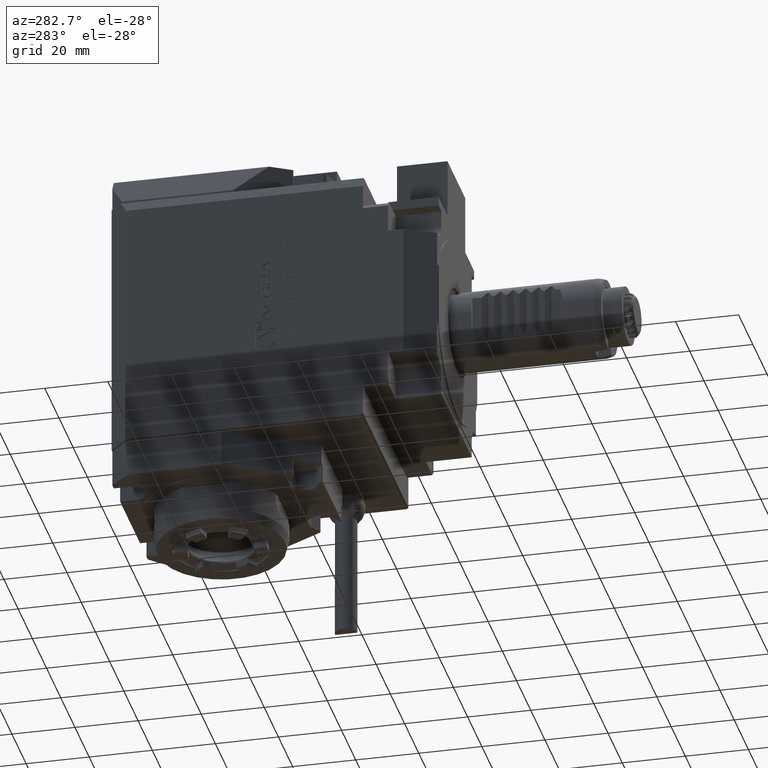
[diagram: clean part render]
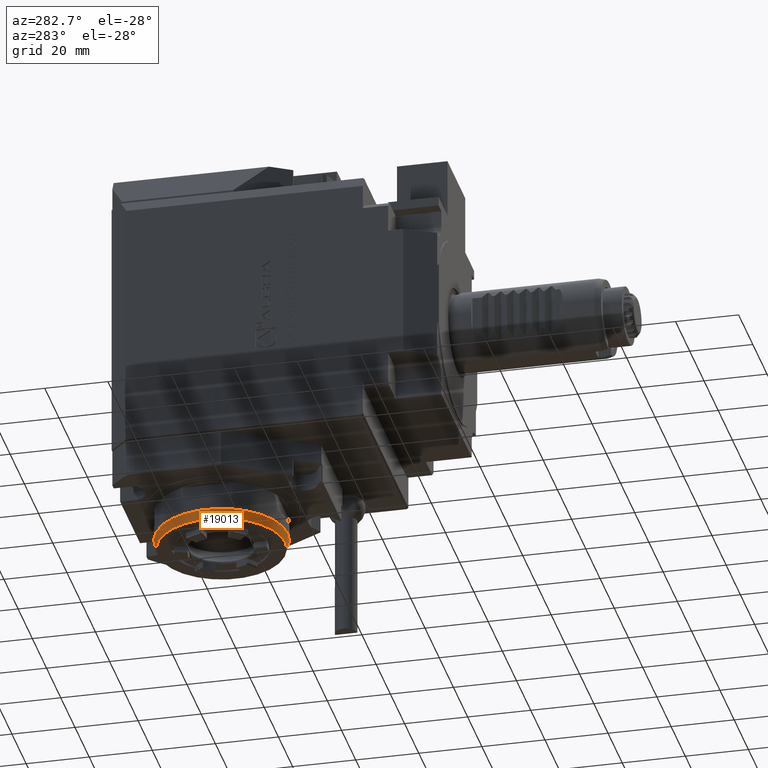
[diagram: same view with one face highlighted and labeled with its STEP entity id]
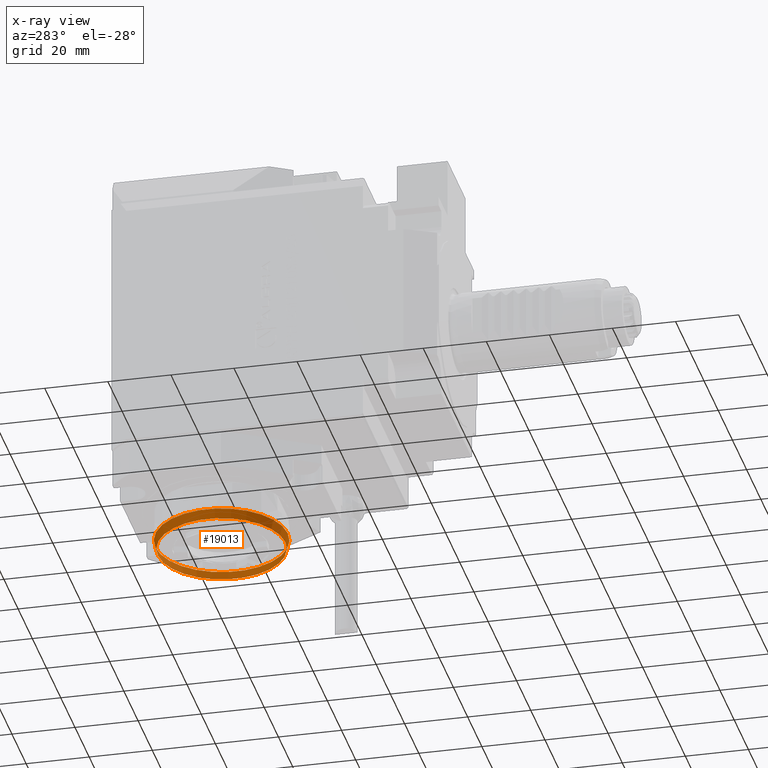
[diagram: x-ray of the same camera — body ghosted, the highlighted face saturated]
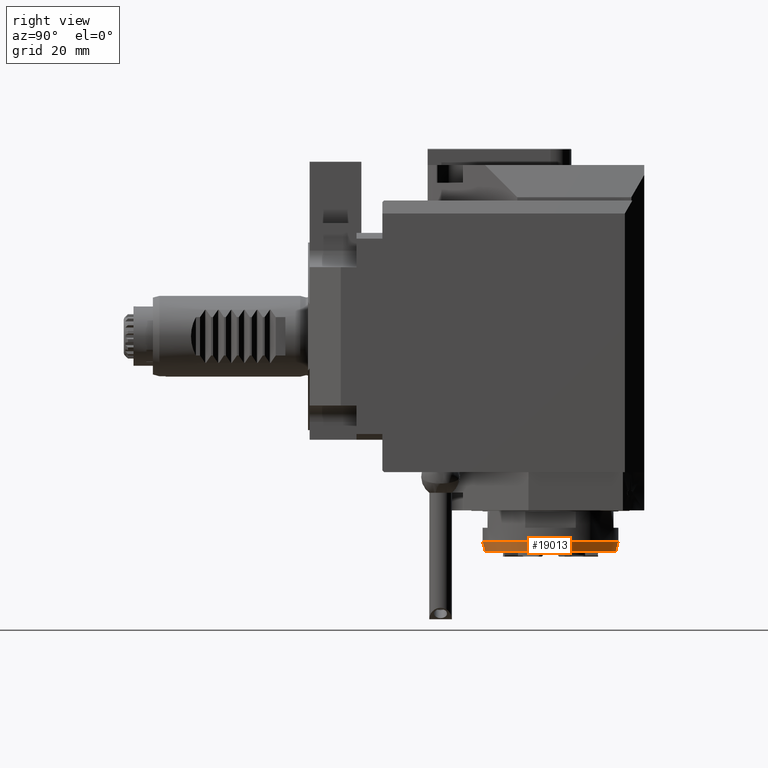
[diagram: same view with one face highlighted and labeled with its STEP entity id]
A machine part, auxiliary view. The second image highlights one B-rep face of the part: STEP entity #19013.
The next image is the same camera in x-ray: the body ghosted, the highlighted face saturated — about 0% of this face is hidden behind the body in this view.
A second angle (right view) of the same face is appended — the face is thin or edge-on in the first view.
In plain terms, the highlighted conical surface has half-angle 15 deg.
Its self-contained STEP definition (entity closure, byte-faithful):
#3772 = AXIS2_PLACEMENT_3D ( 'NONE', #12297, #3809, #26398 ) ;
#3809 = DIRECTION ( 'NONE',  ( -1.850048574905775117E-16, 6.956068730725011073E-17, 1.000000000000000000 ) ) ;
#6694 = CONICAL_SURFACE ( 'NONE', #31518, 20.19615242270660005, 0.2617993877991472429 ) ;
#8963 = CARTESIAN_POINT ( 'NONE',  ( 1.686075059105939837E-14, -5.805499164455029170E-15, -66.50000000000000000 ) ) ;
#9522 = CARTESIAN_POINT ( 'NONE',  ( 1.686075059105939837E-14, -5.805499164455029170E-15, -66.50000000000000000 ) ) ;
#11197 = DIRECTION ( 'NONE',  ( 2.081668171172168760E-16, 1.000000000000000000, 0.000000000000000000 ) ) ;
#11379 = DIRECTION ( 'NONE',  ( -1.850048574905775117E-16, 6.956068730725011073E-17, 1.000000000000000000 ) ) ;
#12297 = CARTESIAN_POINT ( 'NONE',  ( 1.630573601858762630E-14, -5.596817102533264121E-15, -63.49999999999977973 ) ) ;
#13703 = CARTESIAN_POINT ( 'NONE',  ( 1.193423285912607084E-14, -21.00000000000003197, -63.49999999999977973 ) ) ;
#14382 = CIRCLE ( 'NONE', #3772, 21.00000000000002487 ) ;
#14876 = DIRECTION ( 'NONE',  ( 1.850048574905775117E-16, -6.956068730725011073E-17, -1.000000000000000000 ) ) ;
#16493 = VERTEX_POINT ( 'NONE', #13703 ) ;
#18044 = CIRCLE ( 'NONE', #24548, 20.19615242270660005 ) ;
#18713 = EDGE_LOOP ( 'NONE', ( #31100 ) ) ;
#19013 = ADVANCED_FACE ( 'Defeature completata1_63', ( #28055, #25274 ), #6694, .T. ) ;
#19271 = VERTEX_POINT ( 'NONE', #21505 ) ;
#19589 = EDGE_CURVE ( 'NONE', #16493, #16493, #14382, .T. ) ;
#21505 = CARTESIAN_POINT ( 'NONE',  ( 1.265658182321040033E-14, -20.19615242270660715, -66.50000000000000000 ) ) ;
#21754 = ORIENTED_EDGE ( 'NONE', *, *, #19589, .F. ) ;
#24548 = AXIS2_PLACEMENT_3D ( 'NONE', #9522, #14876, #34661 ) ;
#25274 = FACE_BOUND ( 'NONE', #18713, .T. ) ;
#26398 = DIRECTION ( 'NONE',  ( -2.081668171172167281E-16, -1.000000000000000000, 0.000000000000000000 ) ) ;
#27622 = EDGE_LOOP ( 'NONE', ( #21754 ) ) ;
#28055 = FACE_OUTER_BOUND ( 'NONE', #27622, .T. ) ;
#28199 = EDGE_CURVE ( 'NONE', #19271, #19271, #18044, .T. ) ;
#31100 = ORIENTED_EDGE ( 'NONE', *, *, #28199, .F. ) ;
#31518 = AXIS2_PLACEMENT_3D ( 'NONE', #8963, #11379, #11197 ) ;
#34661 = DIRECTION ( 'NONE',  ( -2.081668171172168267E-16, -1.000000000000000000, 0.000000000000000000 ) ) ;